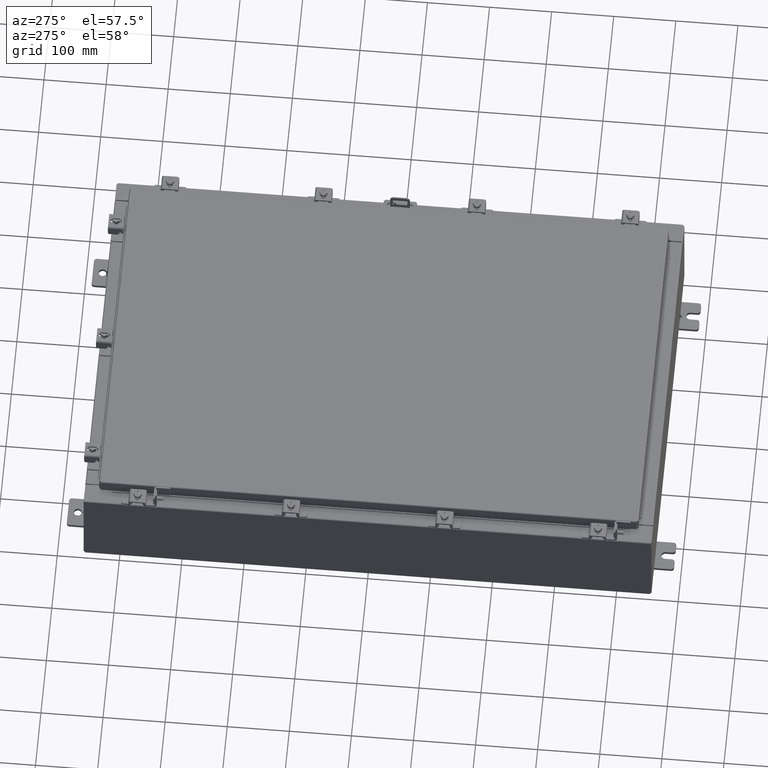
[diagram: clean part render]
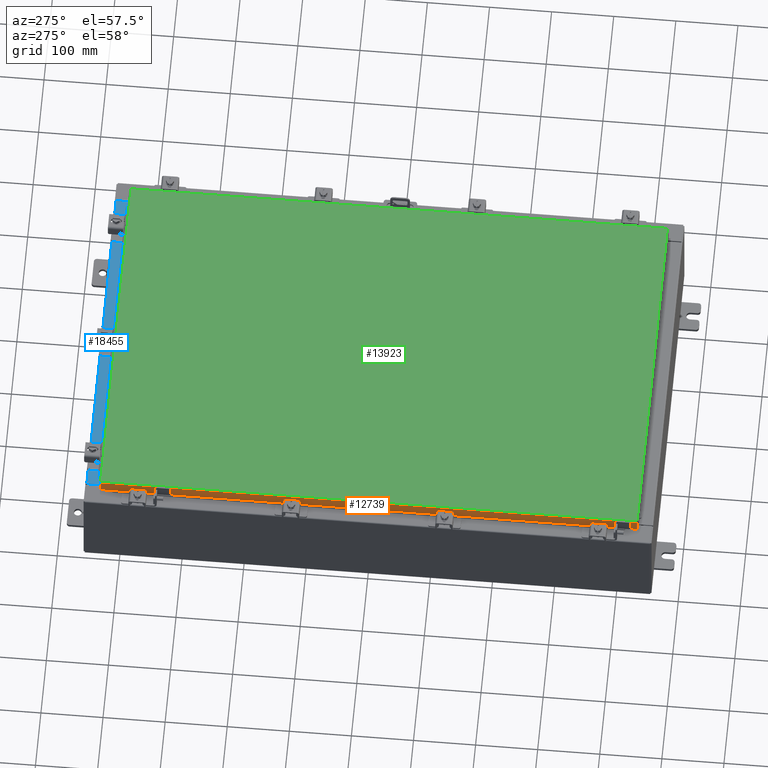
[diagram: same view with three faces highlighted in distinct colors, each labeled with its STEP entity id]
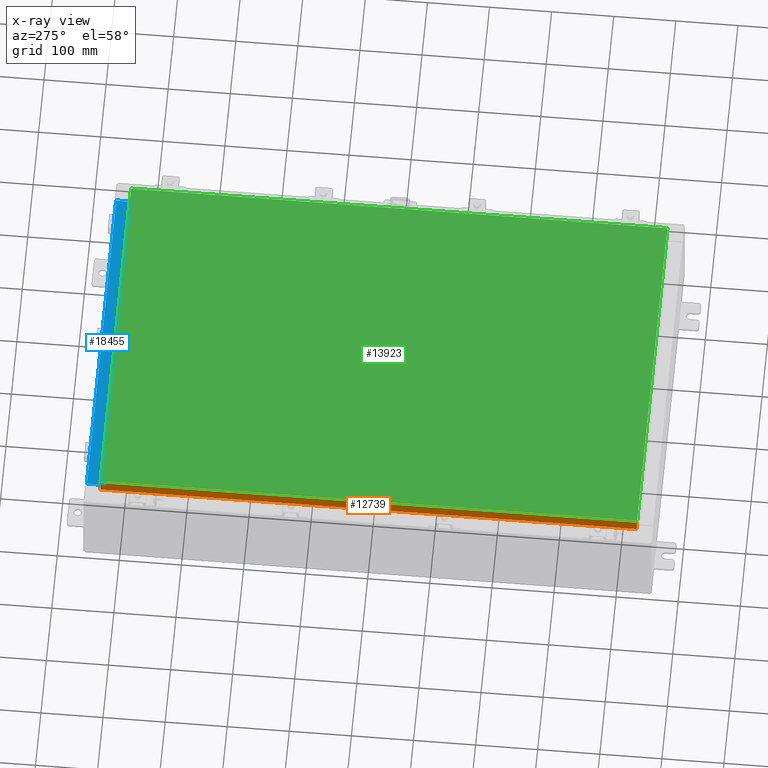
[diagram: x-ray of the same camera — body ghosted, the three highlighted faces saturated]
A machine part, auxiliary view with three faces highlighted in distinct colors.
The next image is the same camera in x-ray (body ghosted, the three faces saturated) — at least one of them is partly hidden behind the body in this view.
Their STEP definitions:

[orange] entity #12739 — the highlighted planar face has unit normal (1, 0, -0).
#131 = EDGE_CURVE ( 'NONE', #17309, #13248, #9779, .T. ) ;
#409 = EDGE_LOOP ( 'NONE', ( #12173, #12677, #15880, #8122, #3932, #17679 ) ) ;
#884 = CARTESIAN_POINT ( 'NONE',  ( -11.07800000000000300, -17.00515786437626900, -0.07469999999999978000 ) ) ;
#1306 = VERTEX_POINT ( 'NONE', #13910 ) ;
#1512 = VECTOR ( 'NONE', #11642, 39.37007874015748100 ) ;
#3562 = EDGE_CURVE ( 'NONE', #22850, #3681, #7571, .T. ) ;
#3681 = VERTEX_POINT ( 'NONE', #22865 ) ;
#3932 = ORIENTED_EDGE ( 'NONE', *, *, #9691, .F. ) ;
#4121 = CARTESIAN_POINT ( 'NONE',  ( -11.07800000000000500, 17.00515786437626900, -0.08770000000000007000 ) ) ;
#4538 = CARTESIAN_POINT ( 'NONE',  ( -11.07800000000000500, -17.09400000000000100, -0.8499999999999996400 ) ) ;
#5376 = LINE ( 'NONE', #22173, #14909 ) ;
#5694 = VECTOR ( 'NONE', #10290, 39.37007874015748100 ) ;
#5744 = AXIS2_PLACEMENT_3D ( 'NONE', #17220, #6474, #19021 ) ;
#6292 = LINE ( 'NONE', #884, #1512 ) ;
#6474 = DIRECTION ( 'NONE',  ( 1.000000000000000000, 6.392530697705108200E-017, -2.818880942772360100E-015 ) ) ;
#7020 = VECTOR ( 'NONE', #20706, 39.37007874015748100 ) ;
#7426 = CARTESIAN_POINT ( 'NONE',  ( -11.07800000000000500, -17.00515786437626500, -0.8499999999999996400 ) ) ;
#7571 = LINE ( 'NONE', #4538, #7020 ) ;
#8122 = ORIENTED_EDGE ( 'NONE', *, *, #22387, .F. ) ;
#8716 = CARTESIAN_POINT ( 'NONE',  ( -11.07800000000000300, 17.00515786437626500, 1.502347594351463900E-013 ) ) ;
#9590 = DIRECTION ( 'NONE',  ( -6.392530697705073700E-017, 1.000000000000000000, 1.238552822680358100E-016 ) ) ;
#9691 = EDGE_CURVE ( 'NONE', #18261, #1306, #5376, .T. ) ;
#9779 = LINE ( 'NONE', #13734, #14574 ) ;
#10290 = DIRECTION ( 'NONE',  ( -0.0000000000000000000, 1.000000000000000000, -0.0000000000000000000 ) ) ;
#10448 = LINE ( 'NONE', #21064, #5694 ) ;
#11642 = DIRECTION ( 'NONE',  ( -2.818880942772360900E-015, 6.982962677686269100E-015, -1.000000000000000000 ) ) ;
#11658 = EDGE_CURVE ( 'NONE', #17309, #3681, #13753, .T. ) ;
#12173 = ORIENTED_EDGE ( 'NONE', *, *, #131, .F. ) ;
#12325 = DIRECTION ( 'NONE',  ( -2.818880942772360900E-015, 6.982962677686269100E-015, -1.000000000000000000 ) ) ;
#12641 = EDGE_CURVE ( 'NONE', #13248, #18261, #6292, .T. ) ;
#12677 = ORIENTED_EDGE ( 'NONE', *, *, #11658, .T. ) ;
#12739 = ADVANCED_FACE ( 'NONE', ( #14711 ), #20749, .F. ) ;
#13248 = VERTEX_POINT ( 'NONE', #20124 ) ;
#13734 = CARTESIAN_POINT ( 'NONE',  ( -11.07800000000000300, -17.09400000000000100, -0.08770000000000007000 ) ) ;
#13753 = LINE ( 'NONE', #8716, #14304 ) ;
#13910 = CARTESIAN_POINT ( 'NONE',  ( -11.07799999999999800, -16.25515786437626500, -0.8500000000000014200 ) ) ;
#14304 = VECTOR ( 'NONE', #12325, 39.37007874015748100 ) ;
#14574 = VECTOR ( 'NONE', #15556, 39.37007874015748100 ) ;
#14711 = FACE_OUTER_BOUND ( 'NONE', #409, .T. ) ;
#14909 = VECTOR ( 'NONE', #9590, 39.37007874015748100 ) ;
#15556 = DIRECTION ( 'NONE',  ( 6.392530697705108200E-017, -1.000000000000000000, -1.742455305178657700E-031 ) ) ;
#15880 = ORIENTED_EDGE ( 'NONE', *, *, #3562, .F. ) ;
#17220 = CARTESIAN_POINT ( 'NONE',  ( -11.07800000000000300, -7.081645506917719700E-016, 3.148837674004379600E-014 ) ) ;
#17309 = VERTEX_POINT ( 'NONE', #4121 ) ;
#17679 = ORIENTED_EDGE ( 'NONE', *, *, #12641, .F. ) ;
#18261 = VERTEX_POINT ( 'NONE', #7426 ) ;
#19021 = DIRECTION ( 'NONE',  ( -2.818880942772360100E-015, 0.0000000000000000000, -1.000000000000000000 ) ) ;
#20124 = CARTESIAN_POINT ( 'NONE',  ( -11.07800000000000300, -17.00515786437626900, -0.08770000000000007000 ) ) ;
#20395 = CARTESIAN_POINT ( 'NONE',  ( -11.07799999999999800, 16.25515786437626200, -0.8500000000000014200 ) ) ;
#20706 = DIRECTION ( 'NONE',  ( -6.392530697705073700E-017, 1.000000000000000000, 1.238552822680358100E-016 ) ) ;
#20749 = PLANE ( 'NONE',  #5744 ) ;
#21064 = CARTESIAN_POINT ( 'NONE',  ( -11.07799999999999800, -16.25515786437626200, -0.8500000000000014200 ) ) ;
#22173 = CARTESIAN_POINT ( 'NONE',  ( -11.07800000000000500, -17.09400000000000100, -0.8499999999999996400 ) ) ;
#22387 = EDGE_CURVE ( 'NONE', #1306, #22850, #10448, .T. ) ;
#22850 = VERTEX_POINT ( 'NONE', #20395 ) ;
#22865 = CARTESIAN_POINT ( 'NONE',  ( -11.07800000000000500, 17.00515786437626900, -0.8499999999999953100 ) ) ;

[blue] entity #18455 — the highlighted planar face has unit normal (0, 0, 1).
#172 = ORIENTED_EDGE ( 'NONE', *, *, #430, .F. ) ;
#430 = EDGE_CURVE ( 'NONE', #3055, #16903, #22751, .T. ) ;
#540 = CARTESIAN_POINT ( 'NONE',  ( -10.63720000000000200, -1.287299999999999200, 3.000000000000005300 ) ) ;
#2156 = EDGE_CURVE ( 'NONE', #3055, #18072, #7358, .T. ) ;
#2235 = CARTESIAN_POINT ( 'NONE',  ( 10.63720000000000400, -1.287299999999999900, 3.000000000000005300 ) ) ;
#2512 = DIRECTION ( 'NONE',  ( 0.0000000000000000000, -1.000000000000000000, 3.566381192773190000E-015 ) ) ;
#2552 = VECTOR ( 'NONE', #16316, 39.37007874015748100 ) ;
#3055 = VERTEX_POINT ( 'NONE', #8684 ) ;
#3450 = ORIENTED_EDGE ( 'NONE', *, *, #15970, .F. ) ;
#5136 = EDGE_LOOP ( 'NONE', ( #21484, #3450, #172, #10483 ) ) ;
#5463 = FACE_OUTER_BOUND ( 'NONE', #5136, .T. ) ;
#5525 = VECTOR ( 'NONE', #19722, 39.37007874015748100 ) ;
#5592 = EDGE_CURVE ( 'NONE', #21515, #18072, #18502, .T. ) ;
#6966 = CARTESIAN_POINT ( 'NONE',  ( -10.63720000000000200, -0.08770000000000000000, 3.000000000000000900 ) ) ;
#7358 = LINE ( 'NONE', #12735, #2552 ) ;
#8684 = CARTESIAN_POINT ( 'NONE',  ( 10.63720000000000400, -0.08769999999999965300, 3.000000000000000900 ) ) ;
#10483 = ORIENTED_EDGE ( 'NONE', *, *, #2156, .T. ) ;
#12735 = CARTESIAN_POINT ( 'NONE',  ( -2.252313287748515100E-018, -0.08770000000000000000, 3.000000000000001300 ) ) ;
#13147 = VECTOR ( 'NONE', #14776, 39.37007874015748100 ) ;
#13200 = CARTESIAN_POINT ( 'NONE',  ( 0.0000000000000000000, 1.069354855923099900E-014, 3.000000000000000900 ) ) ;
#13283 = DIRECTION ( 'NONE',  ( 0.0000000000000000000, 3.566381192773190000E-015, 1.000000000000000000 ) ) ;
#13688 = DIRECTION ( 'NONE',  ( -0.0000000000000000000, 1.000000000000000000, -3.566381192773190000E-015 ) ) ;
#14084 = VECTOR ( 'NONE', #13688, 39.37007874015748100 ) ;
#14776 = DIRECTION ( 'NONE',  ( -0.0000000000000000000, -1.000000000000000000, 3.566381192773190000E-015 ) ) ;
#15970 = EDGE_CURVE ( 'NONE', #16903, #21515, #19853, .T. ) ;
#16316 = DIRECTION ( 'NONE',  ( -1.000000000000000000, 2.568202152506545800E-017, -9.159187855938968600E-032 ) ) ;
#16557 = CARTESIAN_POINT ( 'NONE',  ( 10.63720000000000200, -1.300299999999999800, 3.000000000000005300 ) ) ;
#16903 = VERTEX_POINT ( 'NONE', #17144 ) ;
#17144 = CARTESIAN_POINT ( 'NONE',  ( 10.63720000000000200, -1.287299999999999900, 3.000000000000005300 ) ) ;
#17303 = CARTESIAN_POINT ( 'NONE',  ( -10.63720000000000200, -0.07469999999999973900, 3.000000000000000900 ) ) ;
#18072 = VERTEX_POINT ( 'NONE', #6966 ) ;
#18455 = ADVANCED_FACE ( 'NONE', ( #5463 ), #20422, .T. ) ;
#18502 = LINE ( 'NONE', #17303, #14084 ) ;
#19722 = DIRECTION ( 'NONE',  ( -1.000000000000000000, 0.0000000000000000000, 0.0000000000000000000 ) ) ;
#19853 = LINE ( 'NONE', #2235, #5525 ) ;
#20422 = PLANE ( 'NONE',  #20880 ) ;
#20880 = AXIS2_PLACEMENT_3D ( 'NONE', #13200, #13283, #2512 ) ;
#21484 = ORIENTED_EDGE ( 'NONE', *, *, #5592, .F. ) ;
#21515 = VERTEX_POINT ( 'NONE', #540 ) ;
#22751 = LINE ( 'NONE', #16557, #13147 ) ;

[green] entity #13923 — the highlighted planar face has unit normal (0, 0, -1).
#98 = DIRECTION ( 'NONE',  ( -1.000000000000000000, -0.0000000000000000000, -0.0000000000000000000 ) ) ;
#542 = EDGE_CURVE ( 'NONE', #5521, #4804, #3222, .T. ) ;
#1666 = CARTESIAN_POINT ( 'NONE',  ( -10.99030000000000100, -17.00630000000000000, 8.878505979408856000E-016 ) ) ;
#2034 = DIRECTION ( 'NONE',  ( 0.0000000000000000000, 0.0000000000000000000, -1.000000000000000000 ) ) ;
#3222 = LINE ( 'NONE', #16872, #17544 ) ;
#4622 = CARTESIAN_POINT ( 'NONE',  ( 10.99029999999999800, -17.00630000000000300, -1.297627796990525000E-015 ) ) ;
#4804 = VERTEX_POINT ( 'NONE', #8016 ) ;
#4843 = LINE ( 'NONE', #4622, #9048 ) ;
#4882 = LINE ( 'NONE', #1666, #13862 ) ;
#5521 = VERTEX_POINT ( 'NONE', #13432 ) ;
#5574 = CARTESIAN_POINT ( 'NONE',  ( 0.0000000000000000000, 0.0000000000000000000, 0.0000000000000000000 ) ) ;
#7388 = PLANE ( 'NONE',  #23242 ) ;
#7734 = VERTEX_POINT ( 'NONE', #14808 ) ;
#8016 = CARTESIAN_POINT ( 'NONE',  ( -10.99030000000000100, -17.00630000000000000, 8.878505979408856000E-016 ) ) ;
#9033 = CARTESIAN_POINT ( 'NONE',  ( 10.99029999999999800, 17.00630000000000000, -2.048885995248197400E-016 ) ) ;
#9048 = VECTOR ( 'NONE', #18971, 39.37007874015748100 ) ;
#9151 = EDGE_CURVE ( 'NONE', #7734, #13815, #4843, .T. ) ;
#11973 = ORIENTED_EDGE ( 'NONE', *, *, #13055, .T. ) ;
#12575 = CARTESIAN_POINT ( 'NONE',  ( 10.99029999999999800, 17.00630000000000000, -2.048885995248197400E-016 ) ) ;
#13055 = EDGE_CURVE ( 'NONE', #4804, #7734, #4882, .T. ) ;
#13432 = CARTESIAN_POINT ( 'NONE',  ( -10.99030000000000500, 17.00630000000000000, -2.390366994456230300E-015 ) ) ;
#13815 = VERTEX_POINT ( 'NONE', #12575 ) ;
#13862 = VECTOR ( 'NONE', #16038, 39.37007874015748100 ) ;
#13923 = ADVANCED_FACE ( 'NONE', ( #17744 ), #7388, .F. ) ;
#14584 = DIRECTION ( 'NONE',  ( -1.000000000000000000, 0.0000000000000000000, -0.0000000000000000000 ) ) ;
#14808 = CARTESIAN_POINT ( 'NONE',  ( 10.99029999999999800, -17.00630000000000300, -1.297627796990525000E-015 ) ) ;
#16038 = DIRECTION ( 'NONE',  ( 1.000000000000000000, -0.0000000000000000000, -0.0000000000000000000 ) ) ;
#16550 = ORIENTED_EDGE ( 'NONE', *, *, #542, .T. ) ;
#16678 = VECTOR ( 'NONE', #98, 39.37007874015748100 ) ;
#16872 = CARTESIAN_POINT ( 'NONE',  ( -10.99030000000000500, 17.00630000000000000, -2.390366994456230300E-015 ) ) ;
#16943 = ORIENTED_EDGE ( 'NONE', *, *, #9151, .T. ) ;
#17544 = VECTOR ( 'NONE', #22238, 39.37007874015748100 ) ;
#17744 = FACE_OUTER_BOUND ( 'NONE', #21921, .T. ) ;
#18971 = DIRECTION ( 'NONE',  ( 0.0000000000000000000, 1.000000000000000000, 0.0000000000000000000 ) ) ;
#19964 = EDGE_CURVE ( 'NONE', #13815, #5521, #22060, .T. ) ;
#20354 = ORIENTED_EDGE ( 'NONE', *, *, #19964, .T. ) ;
#21921 = EDGE_LOOP ( 'NONE', ( #11973, #16943, #20354, #16550 ) ) ;
#22060 = LINE ( 'NONE', #9033, #16678 ) ;
#22238 = DIRECTION ( 'NONE',  ( 0.0000000000000000000, -1.000000000000000000, 0.0000000000000000000 ) ) ;
#23242 = AXIS2_PLACEMENT_3D ( 'NONE', #5574, #2034, #14584 ) ;